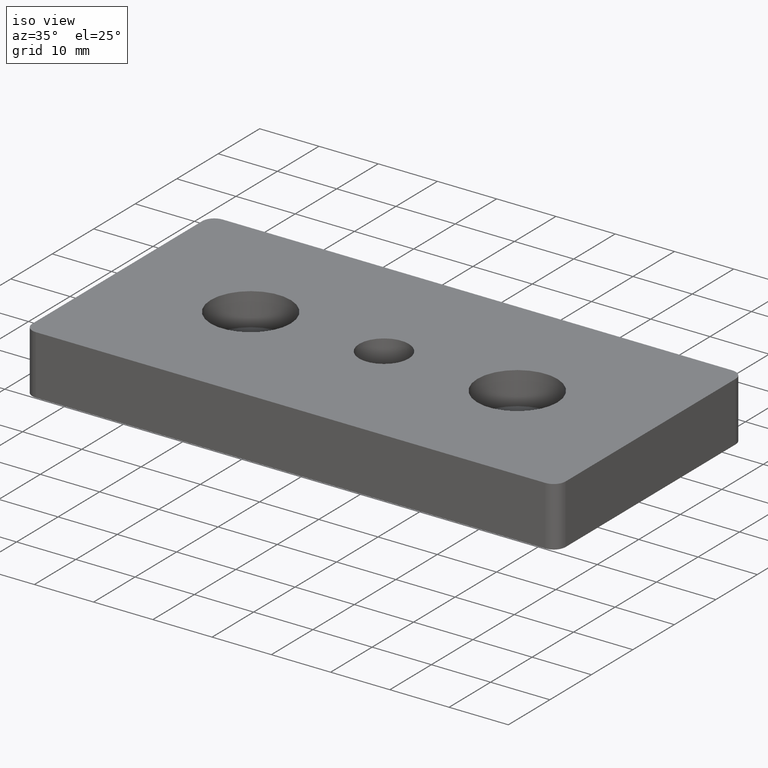
[diagram: clean part render]
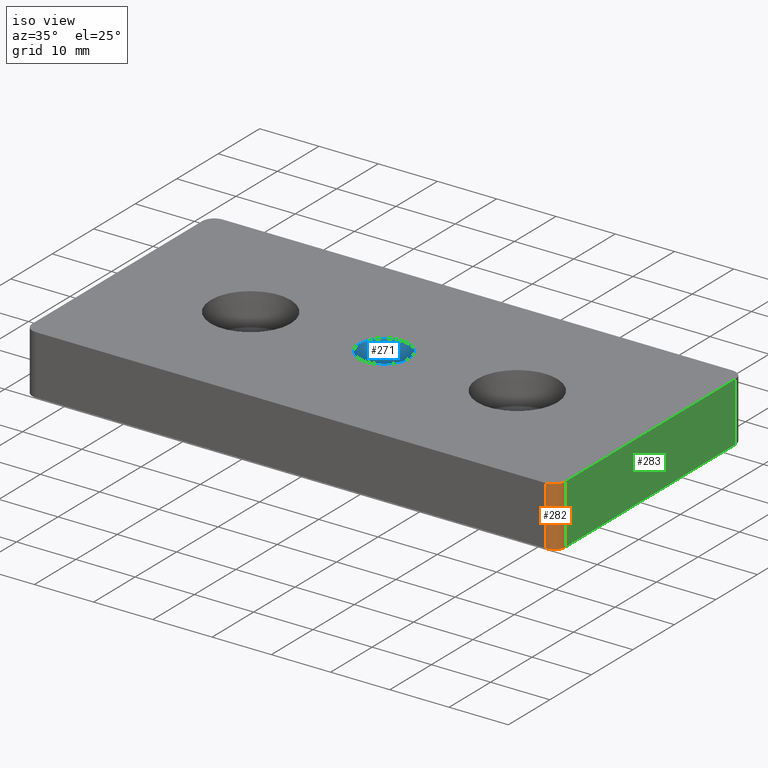
[diagram: same view with three faces highlighted in distinct colors, each labeled with its STEP entity id]
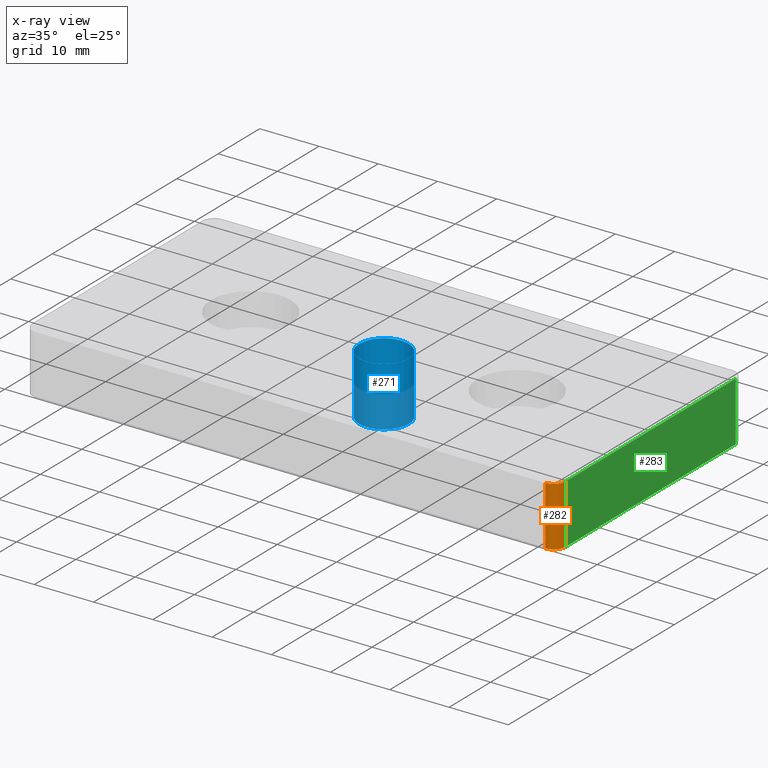
[diagram: x-ray of the same camera — body ghosted, the three highlighted faces saturated]
A machine part, iso view with three faces highlighted in distinct colors.
The next image is the same camera in x-ray (body ghosted, the three faces saturated) — at least one of them is partly hidden behind the body in this view.
Their STEP definitions:

[orange] entity #282 — the highlighted cylindrical surface (edge-blend (fillet) strip) has radius 2 mm, axis along (0, 0, 1).
#25=LINE('',#476,#41);
#26=LINE('',#477,#42);
#41=VECTOR('',#394,10.);
#42=VECTOR('',#395,10.);
#80=FACE_OUTER_BOUND('',#107,.T.);
#107=EDGE_LOOP('',(#231,#232,#233,#234));
#130=CIRCLE('',#313,2.);
#132=CIRCLE('',#318,2.);
#152=VERTEX_POINT('',#459);
#153=VERTEX_POINT('',#461);
#156=VERTEX_POINT('',#473);
#157=VERTEX_POINT('',#474);
#179=EDGE_CURVE('',#153,#152,#130,.T.);
#185=EDGE_CURVE('',#156,#157,#132,.T.);
#186=EDGE_CURVE('',#157,#153,#25,.T.);
#187=EDGE_CURVE('',#152,#156,#26,.T.);
#231=ORIENTED_EDGE('',*,*,#185,.T.);
#232=ORIENTED_EDGE('',*,*,#186,.T.);
#233=ORIENTED_EDGE('',*,*,#179,.T.);
#234=ORIENTED_EDGE('',*,*,#187,.T.);
#269=CYLINDRICAL_SURFACE('',#317,2.);
#282=ADVANCED_FACE('',(#80),#269,.T.);
#313=AXIS2_PLACEMENT_3D('',#462,#378,#379);
#317=AXIS2_PLACEMENT_3D('',#472,#390,#391);
#318=AXIS2_PLACEMENT_3D('',#475,#392,#393);
#378=DIRECTION('center_axis',(0.,0.,1.));
#379=DIRECTION('ref_axis',(0.707106781186546,-0.707106781186549,0.));
#390=DIRECTION('center_axis',(0.,0.,1.));
#391=DIRECTION('ref_axis',(0.707106781186546,-0.707106781186549,0.));
#392=DIRECTION('center_axis',(0.,0.,-1.));
#393=DIRECTION('ref_axis',(0.707106781186546,-0.707106781186549,0.));
#394=DIRECTION('',(0.,0.,-1.));
#395=DIRECTION('',(0.,0.,1.));
#459=CARTESIAN_POINT('',(45.,-20.5,0.));
#461=CARTESIAN_POINT('',(43.,-22.5,0.));
#462=CARTESIAN_POINT('Origin',(43.,-20.5,0.));
#472=CARTESIAN_POINT('Origin',(43.,-20.5,0.));
#473=CARTESIAN_POINT('',(45.,-20.5,10.));
#474=CARTESIAN_POINT('',(43.,-22.5,10.));
#475=CARTESIAN_POINT('Origin',(43.,-20.5,10.));
#476=CARTESIAN_POINT('',(43.,-22.5,0.));
#477=CARTESIAN_POINT('',(45.,-20.5,0.));

[blue] entity #271 — the highlighted cylindrical surface (bore or boss wall) has radius 4.188 mm, axis along (0, 0, 1).
#56=FACE_BOUND('',#87,.T.);
#69=FACE_OUTER_BOUND('',#86,.T.);
#86=EDGE_LOOP('',(#194));
#87=EDGE_LOOP('',(#195));
#116=CIRCLE('',#291,4.188);
#117=CIRCLE('',#292,4.188);
#134=VERTEX_POINT('',#415);
#135=VERTEX_POINT('',#417);
#160=EDGE_CURVE('',#134,#134,#116,.T.);
#161=EDGE_CURVE('',#135,#135,#117,.T.);
#194=ORIENTED_EDGE('',*,*,#160,.F.);
#195=ORIENTED_EDGE('',*,*,#161,.F.);
#262=CYLINDRICAL_SURFACE('',#290,4.188);
#271=ADVANCED_FACE('',(#69,#56),#262,.F.);
#290=AXIS2_PLACEMENT_3D('',#414,#327,#328);
#291=AXIS2_PLACEMENT_3D('',#416,#329,#330);
#292=AXIS2_PLACEMENT_3D('',#418,#331,#332);
#327=DIRECTION('center_axis',(0.,0.,1.));
#328=DIRECTION('ref_axis',(1.,0.,0.));
#329=DIRECTION('center_axis',(0.,0.,1.));
#330=DIRECTION('ref_axis',(1.,0.,0.));
#331=DIRECTION('center_axis',(0.,0.,-1.));
#332=DIRECTION('ref_axis',(1.,0.,0.));
#414=CARTESIAN_POINT('Origin',(0.,0.,-91.1187420807834));
#415=CARTESIAN_POINT('',(-4.188,-5.12882079482912E-16,0.));
#416=CARTESIAN_POINT('Origin',(0.,0.,0.));
#417=CARTESIAN_POINT('',(4.188,0.,10.));
#418=CARTESIAN_POINT('Origin',(0.,0.,10.));

[green] entity #283 — the highlighted planar face has unit normal (1, 0, 0).
#20=LINE('',#460,#36);
#26=LINE('',#477,#42);
#27=LINE('',#480,#43);
#28=LINE('',#481,#44);
#36=VECTOR('',#377,41.);
#42=VECTOR('',#395,10.);
#43=VECTOR('',#398,10.);
#44=VECTOR('',#399,41.);
#52=PLANE('',#319);
#81=FACE_OUTER_BOUND('',#108,.T.);
#108=EDGE_LOOP('',(#235,#236,#237,#238));
#151=VERTEX_POINT('',#457);
#152=VERTEX_POINT('',#459);
#156=VERTEX_POINT('',#473);
#158=VERTEX_POINT('',#479);
#178=EDGE_CURVE('',#151,#152,#20,.T.);
#187=EDGE_CURVE('',#152,#156,#26,.T.);
#188=EDGE_CURVE('',#158,#151,#27,.T.);
#189=EDGE_CURVE('',#156,#158,#28,.T.);
#235=ORIENTED_EDGE('',*,*,#187,.F.);
#236=ORIENTED_EDGE('',*,*,#178,.F.);
#237=ORIENTED_EDGE('',*,*,#188,.F.);
#238=ORIENTED_EDGE('',*,*,#189,.F.);
#283=ADVANCED_FACE('',(#81),#52,.T.);
#319=AXIS2_PLACEMENT_3D('',#478,#396,#397);
#377=DIRECTION('',(0.,-1.,0.));
#395=DIRECTION('',(0.,0.,1.));
#396=DIRECTION('center_axis',(1.,0.,0.));
#397=DIRECTION('ref_axis',(0.,1.,0.));
#398=DIRECTION('',(0.,0.,-1.));
#399=DIRECTION('',(0.,1.,0.));
#457=CARTESIAN_POINT('',(45.,20.5,0.));
#459=CARTESIAN_POINT('',(45.,-20.5,0.));
#460=CARTESIAN_POINT('',(45.,22.5,0.));
#473=CARTESIAN_POINT('',(45.,-20.5,10.));
#477=CARTESIAN_POINT('',(45.,-20.5,0.));
#478=CARTESIAN_POINT('Origin',(45.,-22.5,0.));
#479=CARTESIAN_POINT('',(45.,20.5,10.));
#480=CARTESIAN_POINT('',(45.,20.5,0.));
#481=CARTESIAN_POINT('',(45.,22.5,10.));